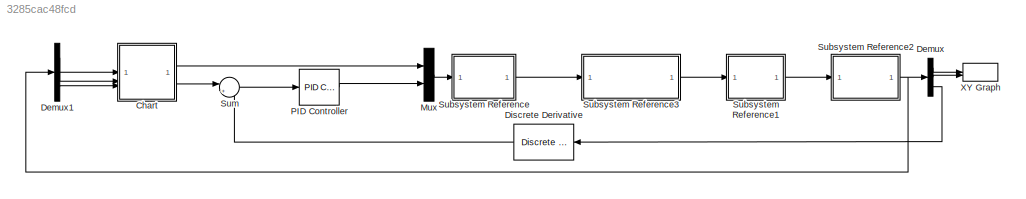
MODEL slx_3285cac48fcd
KIND model
CONFIG AbsTol = auto
CONFIG EnableMultiTasking = off
CONFIG FixedStep = auto
CONFIG MaxStep = auto
CONFIG MinStep = auto
CONFIG RelTol = 1e-3
CONFIG SampleTimeConstraint = Unconstrained
CONFIG SolverName = VariableStepAuto
CONFIG StartTime = 0.0
CONFIG StopTime = 10.0
WORKSPACE source: mxarray member
WORKSPACE d = 1
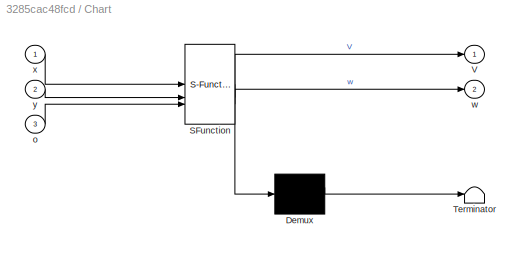
BLOCK [SubSystem] Chart
  ErrorFcn = Stateflow.Translate.translate
  PermitHierarchicalResolution = ExplicitOnly
  SFBlockType = Chart
  TreatAsAtomicUnit = on
BLOCK [Demux] Chart/ Demux 
  Outputs = 1
BLOCK [S-Function] Chart/ SFunction 
  EnableBusSupport = off
  FunctionName = sf_sfun
  PortCounts = [3 3]
  SFcnIsStateOwnerBlock = off
  SFunctionDeploymentMode = off
  Tag = Stateflow S-Function 3
BLOCK [Terminator] Chart/ Terminator 
BLOCK [Outport] Chart/V
BLOCK [Inport] Chart/o
  Port = 3
BLOCK [Outport] Chart/w
  Port = 2
BLOCK [Inport] Chart/x
BLOCK [Inport] Chart/y
  Port = 2
BLOCK [Demux] Demux
  Outputs = 3
BLOCK [Demux] Demux1
  Outputs = 3
BLOCK [Reference] Discrete Derivative  REF=simulink/Discrete/Discrete Derivative
  NameLocation = top
  SourceBlock = simulink/Discrete/Discrete Derivative
  SourceType = Discrete Derivative
BLOCK [Mux] Mux
  DisplayOption = bar
  Inputs = 2
BLOCK [Reference] PID Controller  REF=slpidlib/PID Controller
  LibrarySourceBlock = simulink/Continuous/PID Controller
  SourceBlock = slpidlib/PID Controller
  SourceType = PID 1dof
BLOCK [SubSystem] Subsystem Reference
  ReferencedSubsystem = Inverso
BLOCK [SubSystem] Subsystem Reference1
  ReferencedSubsystem = Directo
BLOCK [SubSystem] Subsystem Reference2
  ReferencedSubsystem = Odometria
BLOCK [SubSystem] Subsystem Reference3
  ReferencedSubsystem = PieroControladoV
BLOCK [Sum] Sum
  Inputs = |+-
BLOCK [Record] XY Graph
  CompatibilityTag = XY
  FileSettingsInternal = {"entries":[{"content":{"excelSettings":{"content":{},"type":"Streamout.ExcelSettings"}},"type":"Streamout.FileSettingStorage","uuid":""}],"packageUris":["http:\/\/schema.mathworks.com\/mf0\/streamout_blocks\/R2020a"],"version":"1.0"}
  Layout = [1 1]
  SignalsInternal = {"entries":[{"content":{},"type":"RecordBlkView.InputSignals","uuid":""}],"packageUris":["http:\/\/schema.mathworks.com\/mf0\/streamout_blocks\/R2020a"],"version":"1.0"}
  VisualizationBindings = {"xyplotplugin":{"info":[{"series":[],"subplotID":1}]}}
LINE Chart:1 -> Mux:1
LINE Chart:2 -> Sum:1
LINE Demux1:1 -> Chart:1
LINE Demux1:2 -> Chart:2
LINE Demux1:3 -> Chart:3
LINE Demux:1 -> XY Graph:1
LINE Demux:2 -> XY Graph:2
LINE Demux:3 -> Discrete Derivative:1
LINE Discrete Derivative:1 -> Sum:2
LINE Mux:1 -> Subsystem Reference:1
LINE PID Controller:1 -> Mux:2
LINE Subsystem Reference1:1 -> Subsystem Reference2:1
NET Subsystem Reference2:1 -> Demux1:1, Demux:1
LINE Subsystem Reference3:1 -> Subsystem Reference1:1
LINE Subsystem Reference:1 -> Subsystem Reference3:1
LINE Sum:1 -> PID Controller:1
note: NET lines group one-source signal fan-out (src -> all destinations, sorted); 1:1 wires keep LINE
CHART Chart states=9 transitions=9
  STATE_LABEL 'Inicio\nw=0;\nV=0;'
  STATE_LABEL 'Estado8\nw=pi/2;\nV=0;'
  STATE_LABEL 'Estado1\nw=0;\nV=0.205;'
  STATE_LABEL 'Estado7\nw=pi/2;\nV=0.205;'
  STATE_LABEL 'Estado2\nw=pi/2;\nV=0.1;'
  STATE_LABEL 'Estado6\nw=pi/2;\nV=0.1;'
  STATE_LABEL 'Estado3\nw=pi/2;\nV=0.205;'
  STATE_LABEL 'Estado5\nw=0;\nV=0.205;'
  STATE_LABEL 'Estado4\nw=0;\nV=0.1;'
CHART  states=0 transitions=0
